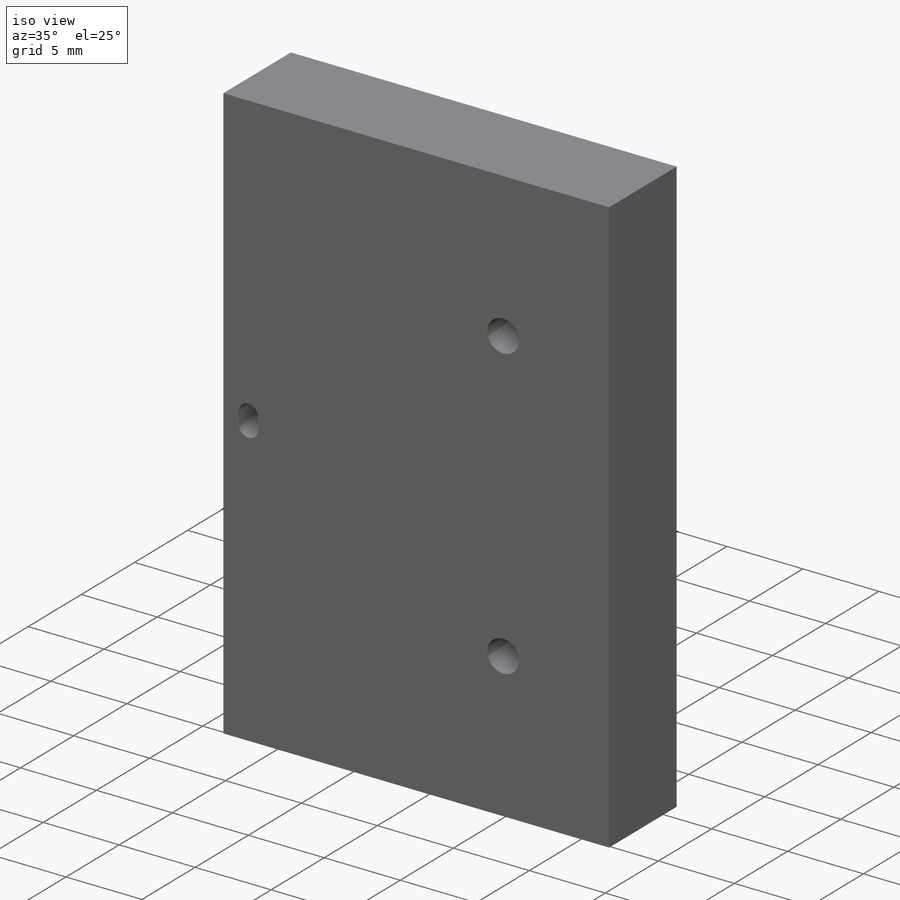
[diagram: iso view]
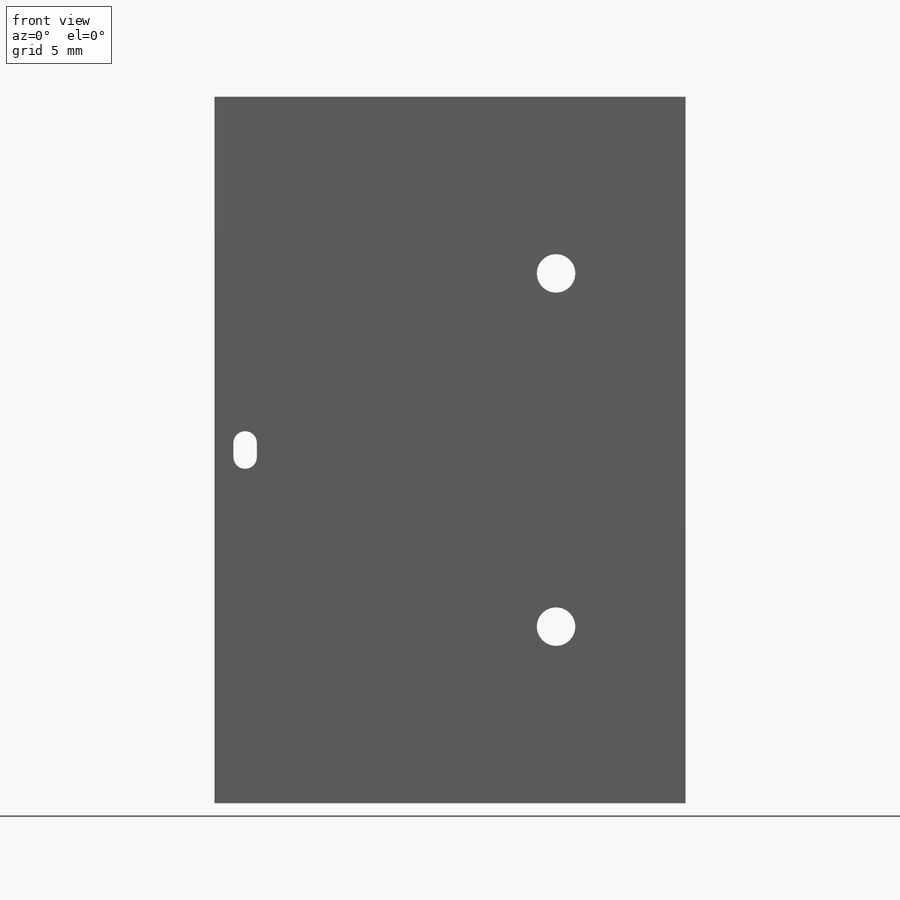
[diagram: front view]
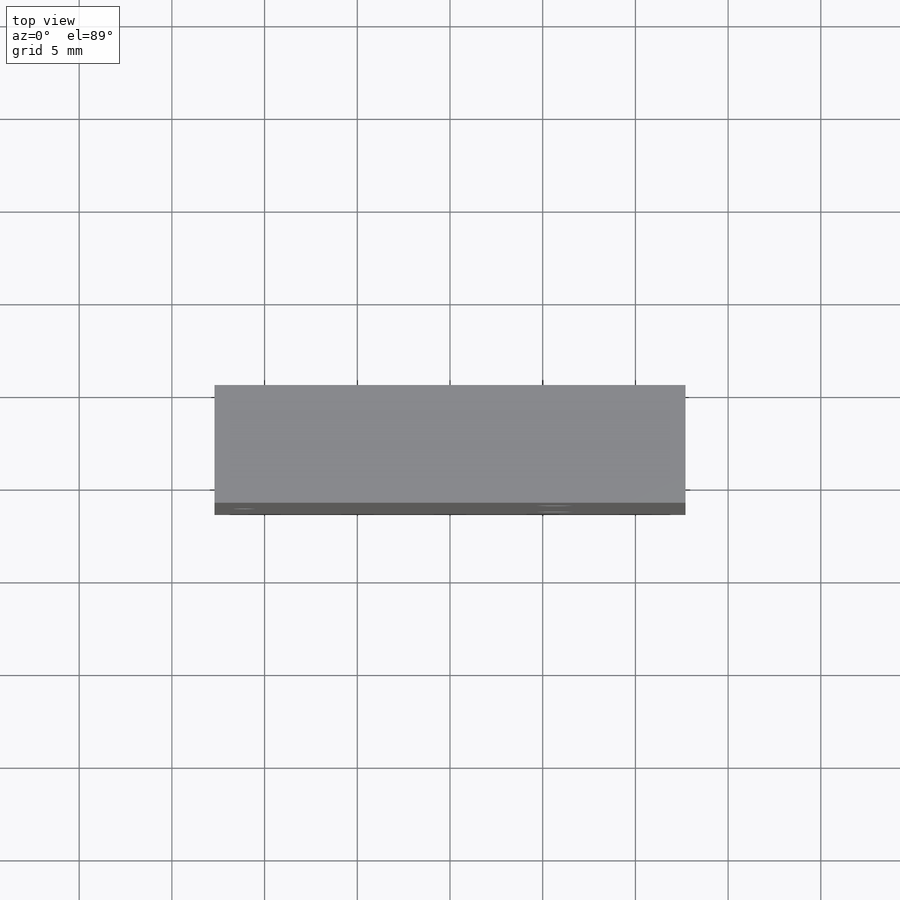
[diagram: top view]
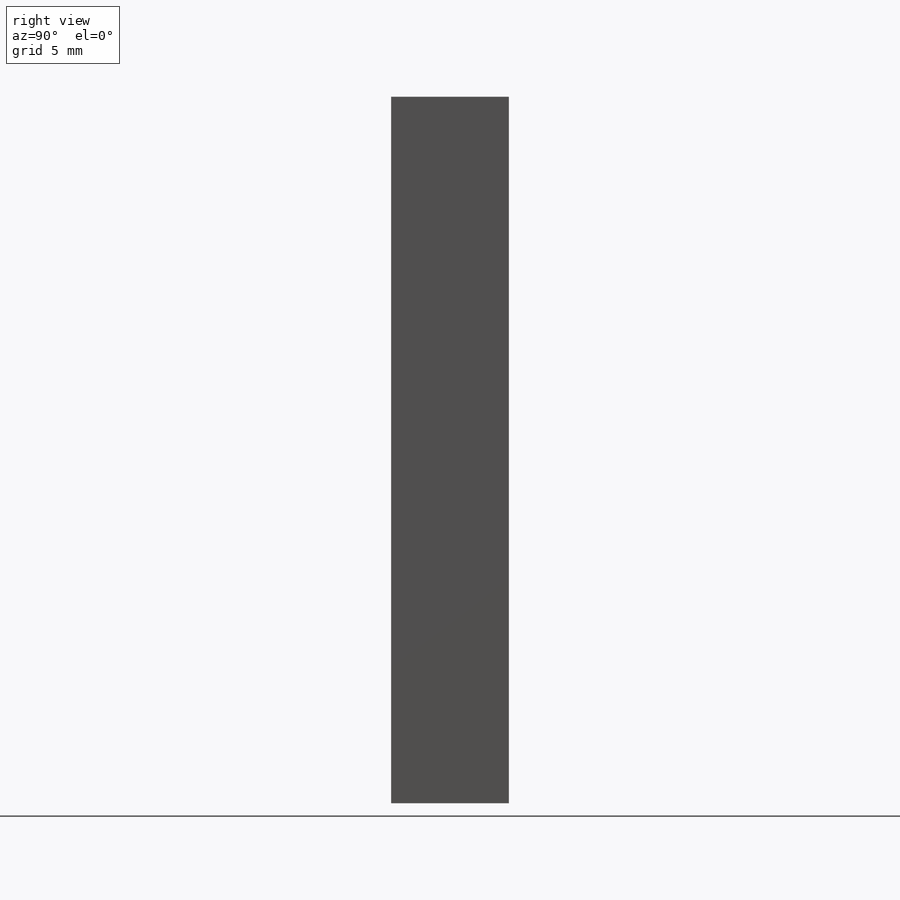
[diagram: right view]
SOLIDWORKS PART (.sldprt)
format: sldprt  version: not decoded by parser v0  size: 206,336 bytes
history: native  units: mm
features: sketch x6, hole x2, material x1, extrude x1, cut_extrude x1 (+13 scaffold rows collapsed)
feature tree (24):
  scaffold x13  (default folders/planes/origin — collapsed)
  material  "Material <not specified>"
  sketch  "Sketch1"  dims[D1=25.4mm D2=38.1mm]
  extrude  "Boss-Extrude1"  Depth=6.35mm
  hole  "Tap Drill for #3-56 Tap1"  Diameter=2.0828mm Depth=7.62mm
  sketch  "Sketch3"
  sketch  "Sketch2"  dims[hole-wizard template sketch: 46 standard entries collapsed; hole parameters kept: c15.Hole Dia.=2.0828mm c15.Hole Depth=7.62mm c15.D3=~14.816244mm c15.Drill Angle=118.0deg]
  sketch  "Sketch4"  dims[c1.D1=1.27mm c1.D2=2.54mm c1.D3=1.27mm c1.D4=1.27mm c2.D1=0.762mm c2.D2=1.016mm c2.D3=1.27mm]
  cut_extrude  "Cut-Extrude1"  [1 undecoded]
  hole  "Tap Drill for #3-56 Tap2"  Diameter=2.0828mm Depth=7.62mm
  sketch  "Sketch6"
  sketch  "Sketch5"  dims[hole-wizard template sketch: 46 standard entries collapsed; hole parameters kept: c15.Hole Dia.=2.0828mm c15.Hole Depth=7.62mm c15.D3=~14.816244mm c15.Drill Angle=118.0deg]
decode coverage: 7 of 10 modeling features carry decoded parameters
note: ~ marks probable driven/reference dimensions
note: 1 parameter value undecoded
note: suppression state not decoded; provenance and decode notes live in map.json
